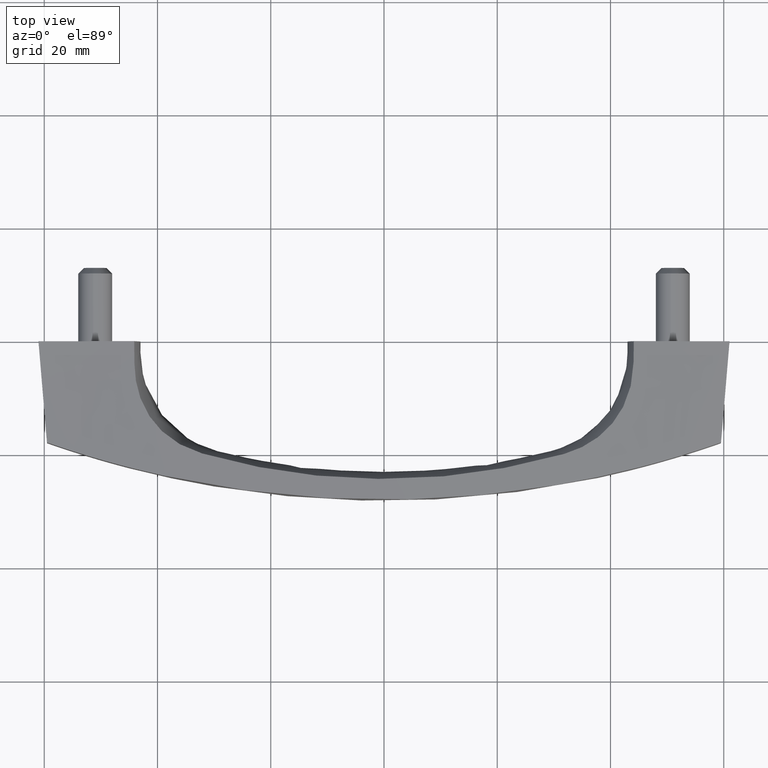
[diagram: clean part render]
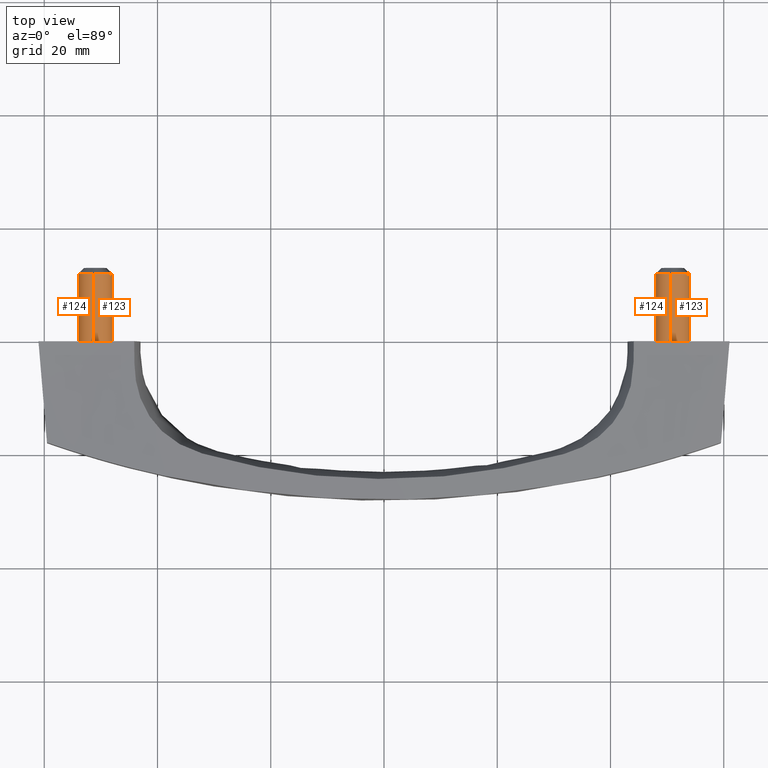
[diagram: same view with one multi-face feature highlighted, each face labeled with its STEP entity id]
A machine part, top view. The highlighted faces form ONE feature: a constant-radius fillet chain: 4 tangent blend faces with common blend radius 3 mm. The faces share edges in the B-rep.
Their STEP definitions:
[1] entity #123 (Cylinder):
#123=ADVANCED_FACE('',(#166),#165,.T.);
#165=CYLINDRICAL_SURFACE('',#400,3.00000000000E+00);
#166=FACE_OUTER_BOUND('',#401,.T.);
#397=CARTESIAN_POINT('',(5.10003000000E+01,3.91357644873E-14,8.50000000000E+00));
#398=DIRECTION('',(3.47470881162E-14,3.83207449485E-15,1.00000000000E+00));
#399=DIRECTION('',(1.18034234657E-01,-9.93009526364E-01,-2.96059473238E-16));
#400=AXIS2_PLACEMENT_3D('',#397,#398,#399);
#401=EDGE_LOOP('',(#1392,#1393,#1394,#1395,#1396,#1397));
#1392=ORIENTED_EDGE('',*,*,#1515,.T.);
#1393=ORIENTED_EDGE('',*,*,#1522,.F.);
#1394=ORIENTED_EDGE('',*,*,#1523,.F.);
#1395=ORIENTED_EDGE('',*,*,#1524,.F.);
#1396=ORIENTED_EDGE('',*,*,#1525,.F.);
#1397=ORIENTED_EDGE('',*,*,#1526,.T.);
#1515=EDGE_CURVE('',#1587,#1579,#1588,.T.);
#1522=EDGE_CURVE('',#1635,#1579,#1636,.T.);
#1523=EDGE_CURVE('',#1642,#1635,#1643,.T.);
#1524=EDGE_CURVE('',#1649,#1642,#1650,.T.);
#1525=EDGE_CURVE('',#1656,#1649,#1657,.T.);
#1526=EDGE_CURVE('',#1656,#1587,#1663,.T.);
#1579=VERTEX_POINT('',#2016);
#1587=VERTEX_POINT('',#2022);
#1588=CIRCLE('',#2026,3.00000000000E+00);
#1635=VERTEX_POINT('',#2056);
#1636=(BOUNDED_CURVE() B_SPLINE_CURVE(1,(#2057,#2058),.UNSPECIFIED.,.F.,.F.) B_SPLINE_CURVE_WITH_KNOTS((2,2),(8.33333328360E-02,9.16666665505E-01),.UNSPECIFIED.) CURVE() GEOMETRIC_REPRESENTATION_ITEM() RATIONAL_B_SPLINE_CURVE((1.00000000000E+00,1.00000000000E+00)) REPRESENTATION_ITEM('') );
#1642=VERTEX_POINT('',#2059);
#1643=CIRCLE('',#2063,3.00000000080E+00);
#1649=VERTEX_POINT('',#2064);
#1650=CIRCLE('',#2068,3.00000079217E+00);
#1656=VERTEX_POINT('',#2069);
#1657=CIRCLE('',#2073,3.00000037940E+00);
#1663=(BOUNDED_CURVE() B_SPLINE_CURVE(1,(#2074,#2075),.UNSPECIFIED.,.F.,.F.) B_SPLINE_CURVE_WITH_KNOTS((2,2),(8.33333333333E-02,9.16666666667E-01),.UNSPECIFIED.) CURVE() GEOMETRIC_REPRESENTATION_ITEM() RATIONAL_B_SPLINE_CURVE((7.50000000000E-01,7.50000000000E-01)) REPRESENTATION_ITEM('') );
#2016=CARTESIAN_POINT('',(5.13544016146E+01,-2.97902870858E+00,8.00000000000E+00));
#2022=CARTESIAN_POINT('',(5.06456824160E+01,2.97896733268E+00,8.00000000000E+00));
#2023=CARTESIAN_POINT('',(5.10003000000E+01,1.39888101103E-14,8.00000000000E+00));
#2024=DIRECTION('',(-0.00000000000E+00,0.00000000000E+00,-1.00000000000E+00));
#2025=DIRECTION('',(-1.00000000000E+00,-4.56579218877E-15,0.00000000000E+00));
#2026=AXIS2_PLACEMENT_3D('',#2023,#2024,#2025);
#2056=CARTESIAN_POINT('',(5.13544027040E+01,-2.97902857921E+00,-1.19999999999E+01));
#2057=CARTESIAN_POINT('',(5.13544027040E+01,-2.97902857909E+00,-1.20000000119E+01));
#2058=CARTESIAN_POINT('',(5.13544027040E+01,-2.97902857909E+00,7.99999997211E+00));
#2059=CARTESIAN_POINT('',(5.40003000000E+01,0.00000000000E+00,-1.20000000000E+01));
#2060=CARTESIAN_POINT('',(5.10002999992E+01,5.89039927945E-10,-1.19999999998E+01));
#2061=DIRECTION('',(-5.38982192067E-11,-2.09345660977E-16,-1.00000000000E+00));
#2062=DIRECTION('',(-1.00000000000E+00,1.96346642596E-10,5.38982192067E-11));
#2063=AXIS2_PLACEMENT_3D('',#2060,#2061,#2062);
#2064=CARTESIAN_POINT('',(5.35294202170E+01,1.61355253574E+00,-1.19999998570E+01));
#2065=CARTESIAN_POINT('',(5.10002992078E+01,3.46207332802E-08,-1.19999990892E+01));
#2066=DIRECTION('',(-3.03599782702E-07,1.39923244235E-14,-1.00000000000E+00));
#2067=DIRECTION('',(-8.43040113788E-01,-5.37850691684E-01,2.55946787829E-07));
#2068=AXIS2_PLACEMENT_3D('',#2065,#2066,#2067);
#2069=CARTESIAN_POINT('',(5.06461972960E+01,2.97902857908E+00,-1.20000000000E+01));
#2070=CARTESIAN_POINT('',(5.10002999659E+01,-3.86129599406E-07,-1.19999996980E+01));
#2071=DIRECTION('',(1.18809869528E-08,-9.99538584673E-08,-1.00000000000E+00));
#2072=DIRECTION('',(1.18034208376E-01,-9.93009529487E-01,1.00657496857E-07));
#2073=AXIS2_PLACEMENT_3D('',#2070,#2071,#2072);
#2074=CARTESIAN_POINT('',(5.06461972960E+01,2.97902857909E+00,-1.20000000000E+01));
#2075=CARTESIAN_POINT('',(5.06461972960E+01,2.97902857909E+00,8.00000000000E+00));
[2] entity #124 (Cylinder):
#124=ADVANCED_FACE('',(#176),#175,.T.);
#175=CYLINDRICAL_SURFACE('',#405,3.00000000000E+00);
#176=FACE_OUTER_BOUND('',#406,.T.);
#402=CARTESIAN_POINT('',(5.10003000000E+01,3.91357644873E-14,8.50000000000E+00));
#403=DIRECTION('',(3.47470881162E-14,3.83207449485E-15,1.00000000000E+00));
#404=DIRECTION('',(1.18034234657E-01,-9.93009526364E-01,-2.96059473238E-16));
#405=AXIS2_PLACEMENT_3D('',#402,#403,#404);
#406=EDGE_LOOP('',(#1398,#1399,#1400,#1401,#1402,#1403,#1404,#1405));
#1398=ORIENTED_EDGE('',*,*,#1527,.F.);
#1399=ORIENTED_EDGE('',*,*,#1528,.F.);
#1400=ORIENTED_EDGE('',*,*,#1529,.F.);
#1401=ORIENTED_EDGE('',*,*,#1530,.F.);
#1402=ORIENTED_EDGE('',*,*,#1522,.T.);
#1403=ORIENTED_EDGE('',*,*,#1514,.T.);
#1404=ORIENTED_EDGE('',*,*,#1516,.T.);
#1405=ORIENTED_EDGE('',*,*,#1526,.F.);
#1514=EDGE_CURVE('',#1579,#1580,#1581,.T.);
#1516=EDGE_CURVE('',#1580,#1587,#1594,.T.);
#1522=EDGE_CURVE('',#1635,#1579,#1636,.T.);
#1526=EDGE_CURVE('',#1656,#1587,#1663,.T.);
#1527=EDGE_CURVE('',#1669,#1656,#1670,.T.);
#1528=EDGE_CURVE('',#1676,#1669,#1677,.T.);
#1529=EDGE_CURVE('',#1683,#1676,#1684,.T.);
#1530=EDGE_CURVE('',#1635,#1683,#1690,.T.);
#1579=VERTEX_POINT('',#2016);
#1580=VERTEX_POINT('',#2017);
#1581=CIRCLE('',#2021,3.00000000000E+00);
#1587=VERTEX_POINT('',#2022);
#1594=CIRCLE('',#2030,3.00000000000E+00);
#1635=VERTEX_POINT('',#2056);
#1636=(BOUNDED_CURVE() B_SPLINE_CURVE(1,(#2057,#2058),.UNSPECIFIED.,.F.,.F.) B_SPLINE_CURVE_WITH_KNOTS((2,2),(8.33333328360E-02,9.16666665505E-01),.UNSPECIFIED.) CURVE() GEOMETRIC_REPRESENTATION_ITEM() RATIONAL_B_SPLINE_CURVE((1.00000000000E+00,1.00000000000E+00)) REPRESENTATION_ITEM('') );
#1656=VERTEX_POINT('',#2069);
#1663=(BOUNDED_CURVE() B_SPLINE_CURVE(1,(#2074,#2075),.UNSPECIFIED.,.F.,.F.) B_SPLINE_CURVE_WITH_KNOTS((2,2),(8.33333333333E-02,9.16666666667E-01),.UNSPECIFIED.) CURVE() GEOMETRIC_REPRESENTATION_ITEM() RATIONAL_B_SPLINE_CURVE((7.50000000000E-01,7.50000000000E-01)) REPRESENTATION_ITEM('') );
#1669=VERTEX_POINT('',#2076);
#1670=CIRCLE('',#2080,3.00000000000E+00);
#1676=VERTEX_POINT('',#2081);
#1677=CIRCLE('',#2085,3.00000000000E+00);
#1683=VERTEX_POINT('',#2086);
#1684=CIRCLE('',#2090,3.00000093927E+00);
#1690=CIRCLE('',#2094,3.00000000080E+00);
#2016=CARTESIAN_POINT('',(5.13544016146E+01,-2.97902870858E+00,8.00000000000E+00));
#2017=CARTESIAN_POINT('',(4.80003000000E+01,-8.32667268469E-16,8.00000000000E+00));
#2018=CARTESIAN_POINT('',(5.10003000000E+01,1.39888101103E-14,8.00000000000E+00));
#2019=DIRECTION('',(-0.00000000000E+00,0.00000000000E+00,-1.00000000000E+00));
#2020=DIRECTION('',(-1.00000000000E+00,-4.56579218877E-15,0.00000000000E+00));
#2021=AXIS2_PLACEMENT_3D('',#2018,#2019,#2020);
#2022=CARTESIAN_POINT('',(5.06456824160E+01,2.97896733268E+00,8.00000000000E+00));
#2027=CARTESIAN_POINT('',(5.10003000000E+01,1.39888101103E-14,8.00000000000E+00));
#2028=DIRECTION('',(-0.00000000000E+00,0.00000000000E+00,-1.00000000000E+00));
#2029=DIRECTION('',(-1.00000000000E+00,-4.56579218877E-15,0.00000000000E+00));
#2030=AXIS2_PLACEMENT_3D('',#2027,#2028,#2029);
#2056=CARTESIAN_POINT('',(5.13544027040E+01,-2.97902857921E+00,-1.19999999999E+01));
#2057=CARTESIAN_POINT('',(5.13544027040E+01,-2.97902857909E+00,-1.20000000119E+01));
#2058=CARTESIAN_POINT('',(5.13544027040E+01,-2.97902857909E+00,7.99999997211E+00));
#2069=CARTESIAN_POINT('',(5.06461972960E+01,2.97902857908E+00,-1.20000000000E+01));
#2074=CARTESIAN_POINT('',(5.06461972960E+01,2.97902857909E+00,-1.20000000000E+01));
#2075=CARTESIAN_POINT('',(5.06461972960E+01,2.97902857909E+00,8.00000000000E+00));
#2076=CARTESIAN_POINT('',(4.84711804634E+01,-1.61355333650E+00,-1.20000000000E+01));
#2077=CARTESIAN_POINT('',(5.10003000000E+01,1.33226762955E-15,-1.20000000000E+01));
#2078=DIRECTION('',(4.37077827722E-14,2.08005709033E-15,-1.00000000000E+00));
#2079=DIRECTION('',(-6.10485396827E-02,9.98134798413E-01,-5.92118946467E-16));
#2080=AXIS2_PLACEMENT_3D('',#2077,#2078,#2079);
#2081=CARTESIAN_POINT('',(5.11834456190E+01,-2.99440439524E+00,-1.20000000000E+01));
#2082=CARTESIAN_POINT('',(5.10003000000E+01,1.33226762955E-15,-1.20000000000E+01));
#2083=DIRECTION('',(4.37077827722E-14,2.08005709033E-15,-1.00000000000E+00));
#2084=DIRECTION('',(-6.10485396827E-02,9.98134798413E-01,-5.92118946467E-16));
#2085=AXIS2_PLACEMENT_3D('',#2082,#2083,#2084);
#2086=CARTESIAN_POINT('',(5.12356772883E+01,-2.99075200126E+00,-1.19999999999E+01));
#2087=CARTESIAN_POINT('',(5.10002999430E+01,9.37537162127E-07,-1.19999990217E+01));
#2088=DIRECTION('',(-1.99084779903E-08,3.25502228376E-07,-1.00000000000E+00));
#2089=DIRECTION('',(-7.84590905426E-02,9.96917334141E-01,3.26060814847E-07));
#2090=AXIS2_PLACEMENT_3D('',#2087,#2088,#2089);
#2091=CARTESIAN_POINT('',(5.10002999992E+01,5.89039927945E-10,-1.19999999998E+01));
#2092=DIRECTION('',(-5.38982192067E-11,-2.09345660977E-16,-1.00000000000E+00));
#2093=DIRECTION('',(-1.00000000000E+00,1.96346642596E-10,5.38982192067E-11));
#2094=AXIS2_PLACEMENT_3D('',#2091,#2092,#2093);
[3] entity #124 (Cylinder):
#124=ADVANCED_FACE('',(#176),#175,.T.);
#175=CYLINDRICAL_SURFACE('',#405,3.00000000000E+00);
#176=FACE_OUTER_BOUND('',#406,.T.);
#402=CARTESIAN_POINT('',(5.10003000000E+01,3.91357644873E-14,8.50000000000E+00));
#403=DIRECTION('',(3.47470881162E-14,3.83207449485E-15,1.00000000000E+00));
#404=DIRECTION('',(1.18034234657E-01,-9.93009526364E-01,-2.96059473238E-16));
#405=AXIS2_PLACEMENT_3D('',#402,#403,#404);
#406=EDGE_LOOP('',(#1398,#1399,#1400,#1401,#1402,#1403,#1404,#1405));
#1398=ORIENTED_EDGE('',*,*,#1527,.F.);
#1399=ORIENTED_EDGE('',*,*,#1528,.F.);
#1400=ORIENTED_EDGE('',*,*,#1529,.F.);
#1401=ORIENTED_EDGE('',*,*,#1530,.F.);
#1402=ORIENTED_EDGE('',*,*,#1522,.T.);
#1403=ORIENTED_EDGE('',*,*,#1514,.T.);
#1404=ORIENTED_EDGE('',*,*,#1516,.T.);
#1405=ORIENTED_EDGE('',*,*,#1526,.F.);
#1514=EDGE_CURVE('',#1579,#1580,#1581,.T.);
#1516=EDGE_CURVE('',#1580,#1587,#1594,.T.);
#1522=EDGE_CURVE('',#1635,#1579,#1636,.T.);
#1526=EDGE_CURVE('',#1656,#1587,#1663,.T.);
#1527=EDGE_CURVE('',#1669,#1656,#1670,.T.);
#1528=EDGE_CURVE('',#1676,#1669,#1677,.T.);
#1529=EDGE_CURVE('',#1683,#1676,#1684,.T.);
#1530=EDGE_CURVE('',#1635,#1683,#1690,.T.);
#1579=VERTEX_POINT('',#2016);
#1580=VERTEX_POINT('',#2017);
#1581=CIRCLE('',#2021,3.00000000000E+00);
#1587=VERTEX_POINT('',#2022);
#1594=CIRCLE('',#2030,3.00000000000E+00);
#1635=VERTEX_POINT('',#2056);
#1636=(BOUNDED_CURVE() B_SPLINE_CURVE(1,(#2057,#2058),.UNSPECIFIED.,.F.,.F.) B_SPLINE_CURVE_WITH_KNOTS((2,2),(8.33333328360E-02,9.16666665505E-01),.UNSPECIFIED.) CURVE() GEOMETRIC_REPRESENTATION_ITEM() RATIONAL_B_SPLINE_CURVE((1.00000000000E+00,1.00000000000E+00)) REPRESENTATION_ITEM('') );
#1656=VERTEX_POINT('',#2069);
#1663=(BOUNDED_CURVE() B_SPLINE_CURVE(1,(#2074,#2075),.UNSPECIFIED.,.F.,.F.) B_SPLINE_CURVE_WITH_KNOTS((2,2),(8.33333333333E-02,9.16666666667E-01),.UNSPECIFIED.) CURVE() GEOMETRIC_REPRESENTATION_ITEM() RATIONAL_B_SPLINE_CURVE((7.50000000000E-01,7.50000000000E-01)) REPRESENTATION_ITEM('') );
#1669=VERTEX_POINT('',#2076);
#1670=CIRCLE('',#2080,3.00000000000E+00);
#1676=VERTEX_POINT('',#2081);
#1677=CIRCLE('',#2085,3.00000000000E+00);
#1683=VERTEX_POINT('',#2086);
#1684=CIRCLE('',#2090,3.00000093927E+00);
#1690=CIRCLE('',#2094,3.00000000080E+00);
#2016=CARTESIAN_POINT('',(5.13544016146E+01,-2.97902870858E+00,8.00000000000E+00));
#2017=CARTESIAN_POINT('',(4.80003000000E+01,-8.32667268469E-16,8.00000000000E+00));
#2018=CARTESIAN_POINT('',(5.10003000000E+01,1.39888101103E-14,8.00000000000E+00));
#2019=DIRECTION('',(-0.00000000000E+00,0.00000000000E+00,-1.00000000000E+00));
#2020=DIRECTION('',(-1.00000000000E+00,-4.56579218877E-15,0.00000000000E+00));
#2021=AXIS2_PLACEMENT_3D('',#2018,#2019,#2020);
#2022=CARTESIAN_POINT('',(5.06456824160E+01,2.97896733268E+00,8.00000000000E+00));
#2027=CARTESIAN_POINT('',(5.10003000000E+01,1.39888101103E-14,8.00000000000E+00));
#2028=DIRECTION('',(-0.00000000000E+00,0.00000000000E+00,-1.00000000000E+00));
#2029=DIRECTION('',(-1.00000000000E+00,-4.56579218877E-15,0.00000000000E+00));
#2030=AXIS2_PLACEMENT_3D('',#2027,#2028,#2029);
#2056=CARTESIAN_POINT('',(5.13544027040E+01,-2.97902857921E+00,-1.19999999999E+01));
#2057=CARTESIAN_POINT('',(5.13544027040E+01,-2.97902857909E+00,-1.20000000119E+01));
#2058=CARTESIAN_POINT('',(5.13544027040E+01,-2.97902857909E+00,7.99999997211E+00));
#2069=CARTESIAN_POINT('',(5.06461972960E+01,2.97902857908E+00,-1.20000000000E+01));
#2074=CARTESIAN_POINT('',(5.06461972960E+01,2.97902857909E+00,-1.20000000000E+01));
#2075=CARTESIAN_POINT('',(5.06461972960E+01,2.97902857909E+00,8.00000000000E+00));
#2076=CARTESIAN_POINT('',(4.84711804634E+01,-1.61355333650E+00,-1.20000000000E+01));
#2077=CARTESIAN_POINT('',(5.10003000000E+01,1.33226762955E-15,-1.20000000000E+01));
#2078=DIRECTION('',(4.37077827722E-14,2.08005709033E-15,-1.00000000000E+00));
#2079=DIRECTION('',(-6.10485396827E-02,9.98134798413E-01,-5.92118946467E-16));
#2080=AXIS2_PLACEMENT_3D('',#2077,#2078,#2079);
#2081=CARTESIAN_POINT('',(5.11834456190E+01,-2.99440439524E+00,-1.20000000000E+01));
#2082=CARTESIAN_POINT('',(5.10003000000E+01,1.33226762955E-15,-1.20000000000E+01));
#2083=DIRECTION('',(4.37077827722E-14,2.08005709033E-15,-1.00000000000E+00));
#2084=DIRECTION('',(-6.10485396827E-02,9.98134798413E-01,-5.92118946467E-16));
#2085=AXIS2_PLACEMENT_3D('',#2082,#2083,#2084);
#2086=CARTESIAN_POINT('',(5.12356772883E+01,-2.99075200126E+00,-1.19999999999E+01));
#2087=CARTESIAN_POINT('',(5.10002999430E+01,9.37537162127E-07,-1.19999990217E+01));
#2088=DIRECTION('',(-1.99084779903E-08,3.25502228376E-07,-1.00000000000E+00));
#2089=DIRECTION('',(-7.84590905426E-02,9.96917334141E-01,3.26060814847E-07));
#2090=AXIS2_PLACEMENT_3D('',#2087,#2088,#2089);
#2091=CARTESIAN_POINT('',(5.10002999992E+01,5.89039927945E-10,-1.19999999998E+01));
#2092=DIRECTION('',(-5.38982192067E-11,-2.09345660977E-16,-1.00000000000E+00));
#2093=DIRECTION('',(-1.00000000000E+00,1.96346642596E-10,5.38982192067E-11));
#2094=AXIS2_PLACEMENT_3D('',#2091,#2092,#2093);
[4] entity #123 (Cylinder):
#123=ADVANCED_FACE('',(#166),#165,.T.);
#165=CYLINDRICAL_SURFACE('',#400,3.00000000000E+00);
#166=FACE_OUTER_BOUND('',#401,.T.);
#397=CARTESIAN_POINT('',(5.10003000000E+01,3.91357644873E-14,8.50000000000E+00));
#398=DIRECTION('',(3.47470881162E-14,3.83207449485E-15,1.00000000000E+00));
#399=DIRECTION('',(1.18034234657E-01,-9.93009526364E-01,-2.96059473238E-16));
#400=AXIS2_PLACEMENT_3D('',#397,#398,#399);
#401=EDGE_LOOP('',(#1392,#1393,#1394,#1395,#1396,#1397));
#1392=ORIENTED_EDGE('',*,*,#1515,.T.);
#1393=ORIENTED_EDGE('',*,*,#1522,.F.);
#1394=ORIENTED_EDGE('',*,*,#1523,.F.);
#1395=ORIENTED_EDGE('',*,*,#1524,.F.);
#1396=ORIENTED_EDGE('',*,*,#1525,.F.);
#1397=ORIENTED_EDGE('',*,*,#1526,.T.);
#1515=EDGE_CURVE('',#1587,#1579,#1588,.T.);
#1522=EDGE_CURVE('',#1635,#1579,#1636,.T.);
#1523=EDGE_CURVE('',#1642,#1635,#1643,.T.);
#1524=EDGE_CURVE('',#1649,#1642,#1650,.T.);
#1525=EDGE_CURVE('',#1656,#1649,#1657,.T.);
#1526=EDGE_CURVE('',#1656,#1587,#1663,.T.);
#1579=VERTEX_POINT('',#2016);
#1587=VERTEX_POINT('',#2022);
#1588=CIRCLE('',#2026,3.00000000000E+00);
#1635=VERTEX_POINT('',#2056);
#1636=(BOUNDED_CURVE() B_SPLINE_CURVE(1,(#2057,#2058),.UNSPECIFIED.,.F.,.F.) B_SPLINE_CURVE_WITH_KNOTS((2,2),(8.33333328360E-02,9.16666665505E-01),.UNSPECIFIED.) CURVE() GEOMETRIC_REPRESENTATION_ITEM() RATIONAL_B_SPLINE_CURVE((1.00000000000E+00,1.00000000000E+00)) REPRESENTATION_ITEM('') );
#1642=VERTEX_POINT('',#2059);
#1643=CIRCLE('',#2063,3.00000000080E+00);
#1649=VERTEX_POINT('',#2064);
#1650=CIRCLE('',#2068,3.00000079217E+00);
#1656=VERTEX_POINT('',#2069);
#1657=CIRCLE('',#2073,3.00000037940E+00);
#1663=(BOUNDED_CURVE() B_SPLINE_CURVE(1,(#2074,#2075),.UNSPECIFIED.,.F.,.F.) B_SPLINE_CURVE_WITH_KNOTS((2,2),(8.33333333333E-02,9.16666666667E-01),.UNSPECIFIED.) CURVE() GEOMETRIC_REPRESENTATION_ITEM() RATIONAL_B_SPLINE_CURVE((7.50000000000E-01,7.50000000000E-01)) REPRESENTATION_ITEM('') );
#2016=CARTESIAN_POINT('',(5.13544016146E+01,-2.97902870858E+00,8.00000000000E+00));
#2022=CARTESIAN_POINT('',(5.06456824160E+01,2.97896733268E+00,8.00000000000E+00));
#2023=CARTESIAN_POINT('',(5.10003000000E+01,1.39888101103E-14,8.00000000000E+00));
#2024=DIRECTION('',(-0.00000000000E+00,0.00000000000E+00,-1.00000000000E+00));
#2025=DIRECTION('',(-1.00000000000E+00,-4.56579218877E-15,0.00000000000E+00));
#2026=AXIS2_PLACEMENT_3D('',#2023,#2024,#2025);
#2056=CARTESIAN_POINT('',(5.13544027040E+01,-2.97902857921E+00,-1.19999999999E+01));
#2057=CARTESIAN_POINT('',(5.13544027040E+01,-2.97902857909E+00,-1.20000000119E+01));
#2058=CARTESIAN_POINT('',(5.13544027040E+01,-2.97902857909E+00,7.99999997211E+00));
#2059=CARTESIAN_POINT('',(5.40003000000E+01,0.00000000000E+00,-1.20000000000E+01));
#2060=CARTESIAN_POINT('',(5.10002999992E+01,5.89039927945E-10,-1.19999999998E+01));
#2061=DIRECTION('',(-5.38982192067E-11,-2.09345660977E-16,-1.00000000000E+00));
#2062=DIRECTION('',(-1.00000000000E+00,1.96346642596E-10,5.38982192067E-11));
#2063=AXIS2_PLACEMENT_3D('',#2060,#2061,#2062);
#2064=CARTESIAN_POINT('',(5.35294202170E+01,1.61355253574E+00,-1.19999998570E+01));
#2065=CARTESIAN_POINT('',(5.10002992078E+01,3.46207332802E-08,-1.19999990892E+01));
#2066=DIRECTION('',(-3.03599782702E-07,1.39923244235E-14,-1.00000000000E+00));
#2067=DIRECTION('',(-8.43040113788E-01,-5.37850691684E-01,2.55946787829E-07));
#2068=AXIS2_PLACEMENT_3D('',#2065,#2066,#2067);
#2069=CARTESIAN_POINT('',(5.06461972960E+01,2.97902857908E+00,-1.20000000000E+01));
#2070=CARTESIAN_POINT('',(5.10002999659E+01,-3.86129599406E-07,-1.19999996980E+01));
#2071=DIRECTION('',(1.18809869528E-08,-9.99538584673E-08,-1.00000000000E+00));
#2072=DIRECTION('',(1.18034208376E-01,-9.93009529487E-01,1.00657496857E-07));
#2073=AXIS2_PLACEMENT_3D('',#2070,#2071,#2072);
#2074=CARTESIAN_POINT('',(5.06461972960E+01,2.97902857909E+00,-1.20000000000E+01));
#2075=CARTESIAN_POINT('',(5.06461972960E+01,2.97902857909E+00,8.00000000000E+00));